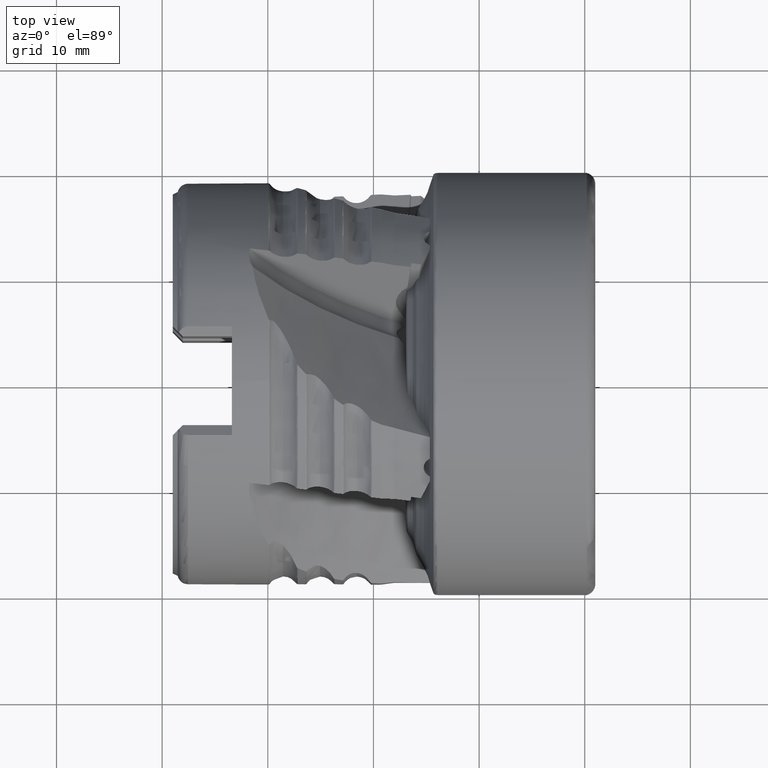
[diagram: clean part render]
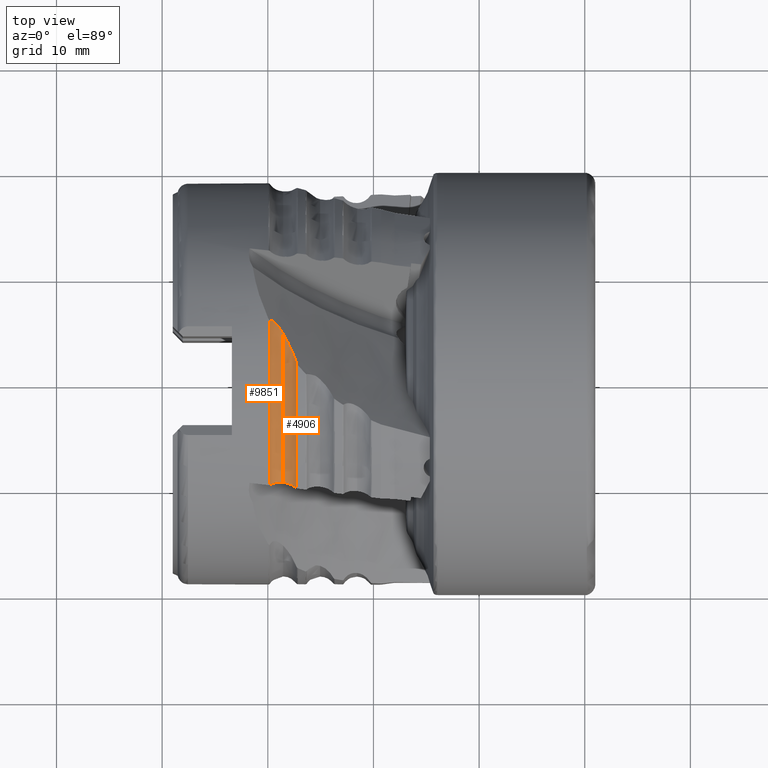
[diagram: same view with one multi-face feature highlighted, each face labeled with its STEP entity id]
A machine part, top view. The highlighted faces form ONE feature: a constant-radius fillet chain: 2 tangent blend faces with common blend radius 1.5 mm. The faces share edges in the B-rep.
Their STEP definitions:
[1] entity #9851 (Torus):
#206 = AXIS2_PLACEMENT_3D ( 'NONE', #777, #6692, #15238 ) ;
#270 = EDGE_CURVE ( 'NONE', #10685, #5851, #6295, .T. ) ;
#388 = CARTESIAN_POINT ( 'NONE',  ( -28.72145279051330391, 4.726668704741195270, 17.63498071032535464 ) ) ;
#650 = ORIENTED_EDGE ( 'NONE', *, *, #13122, .F. ) ;
#777 = CARTESIAN_POINT ( 'NONE',  ( -29.79392989822396487, 0.0000000000000000000, 0.0000000000000000000 ) ) ;
#964 = TOROIDAL_SURFACE ( 'NONE', #1786, 19.75000000000000000, 1.500000000000002220 ) ;
#1338 = FACE_OUTER_BOUND ( 'NONE', #5513, .T. ) ;
#1597 = CARTESIAN_POINT ( 'NONE',  ( -28.90605975742011680, 5.008974433241498048, 17.59116912188862614 ) ) ;
#1697 = CARTESIAN_POINT ( 'NONE',  ( -29.21699488190107274, 5.413079981942582997, 17.59086704328792194 ) ) ;
#1786 = AXIS2_PLACEMENT_3D ( 'NONE', #13657, #14916, #10044 ) ;
#1795 = B_SPLINE_CURVE_WITH_KNOTS ( 'NONE', 3,
 ( #9629, #13192, #4972, #9575, #7160, #10782, #12013, #6071 ),
 .UNSPECIFIED., .F., .F.,
 ( 4, 2, 2, 4 ),
 ( 0.001476875426904100718, 0.001842837215292535266, 0.002208799003680970031, 0.002940722580457849102 ),
 .UNSPECIFIED. ) ;
#2109 = EDGE_CURVE ( 'NONE', #15001, #5851, #1795, .T. ) ;
#2201 = CARTESIAN_POINT ( 'NONE',  ( -29.79392989822396487, 5.710060270369656799, 18.02914462750252511 ) ) ;
#3784 = CARTESIAN_POINT ( 'NONE',  ( -28.54999999999999005, 4.439997756904186410, 17.70166432623457453 ) ) ;
#4214 = VERTEX_POINT ( 'NONE', #8082 ) ;
#4538 = ORIENTED_EDGE ( 'NONE', *, *, #2109, .F. ) ;
#4947 = B_SPLINE_CURVE_WITH_KNOTS ( 'NONE', 3,
 ( #3784, #7542, #388, #1597, #10111, #7690, #1697, #11371, #12447, #13620, #11412, #14981, #10061, #6456 ),
 .UNSPECIFIED., .F., .F.,
 ( 4, 2, 2, 2, 2, 2, 4 ),
 ( 0.003171169772182523810, 0.003675496995640124484, 0.004179824219097724725, 0.004431987830826522243, 0.004684151442555320628, 0.004936315054284119014, 0.005188478666012916532 ),
 .UNSPECIFIED. ) ;
#4972 = CARTESIAN_POINT ( 'NONE',  ( -28.79364048011194299, -9.569151484905557226, 15.55765446600306845 ) ) ;
#5513 = EDGE_LOOP ( 'NONE', ( #650, #6274, #7227, #4538 ) ) ;
#5650 = DIRECTION ( 'NONE',  ( 0.0000000000000000000, 0.0000000000000000000, -1.000000000000000000 ) ) ;
#5851 = VERTEX_POINT ( 'NONE', #6083 ) ;
#6071 = CARTESIAN_POINT ( 'NONE',  ( -29.79392989822396842, -9.830223778698798043, 16.15616120095866037 ) ) ;
#6083 = CARTESIAN_POINT ( 'NONE',  ( -29.79392989822396842, -9.830223778698798043, 16.15616120095866037 ) ) ;
#6274 = ORIENTED_EDGE ( 'NONE', *, *, #13969, .T. ) ;
#6295 = CIRCLE ( 'NONE', #206, 18.91176470588235148 ) ;
#6456 = CARTESIAN_POINT ( 'NONE',  ( -29.79392989822396487, 5.710060270369656799, 18.02914462750252511 ) ) ;
#6692 = DIRECTION ( 'NONE',  ( 1.000000000000000000, -0.0000000000000000000, -0.0000000000000000000 ) ) ;
#7160 = CARTESIAN_POINT ( 'NONE',  ( -29.14491572720928758, -9.587475059294408908, 15.66686543933943909 ) ) ;
#7227 = ORIENTED_EDGE ( 'NONE', *, *, #270, .T. ) ;
#7536 = CIRCLE ( 'NONE', #13128, 18.25000000000000000 ) ;
#7542 = CARTESIAN_POINT ( 'NONE',  ( -28.63400816086703671, 4.583514677829058748, 17.66566687451242501 ) ) ;
#7690 = CARTESIAN_POINT ( 'NONE',  ( -29.16182876642536215, 5.348229960753075218, 17.58401265682263670 ) ) ;
#8082 = CARTESIAN_POINT ( 'NONE',  ( -28.54999999999999005, 4.439997756904186410, 17.70166432623457453 ) ) ;
#9461 = CARTESIAN_POINT ( 'NONE',  ( -28.54999999999999361, 0.0000000000000000000, 0.0000000000000000000 ) ) ;
#9575 = CARTESIAN_POINT ( 'NONE',  ( -29.02882884201347125, -9.575303218903581381, 15.62235569131432023 ) ) ;
#9629 = CARTESIAN_POINT ( 'NONE',  ( -28.54999999999999361, -9.589558594929952662, 15.52748743211228266 ) ) ;
#9851 = ADVANCED_FACE ( 'NONE', ( #1338 ), #964, .F. ) ;
#10044 = DIRECTION ( 'NONE',  ( 0.0000000000000000000, 0.0000000000000000000, -1.000000000000000000 ) ) ;
#10061 = CARTESIAN_POINT ( 'NONE',  ( -29.75196920375208620, 5.731264558055857883, 17.95711145735987202 ) ) ;
#10111 = CARTESIAN_POINT ( 'NONE',  ( -29.00254078698124260, 5.147870505912443662, 17.57744300212497279 ) ) ;
#10174 = CARTESIAN_POINT ( 'NONE',  ( -28.54999999999999361, -9.589558594929952662, 15.52748743211228266 ) ) ;
#10685 = VERTEX_POINT ( 'NONE', #2201 ) ;
#10782 = CARTESIAN_POINT ( 'NONE',  ( -29.46782133979106888, -9.649563896562272092, 15.82953088298592448 ) ) ;
#11371 = CARTESIAN_POINT ( 'NONE',  ( -29.33323688149432584, 5.534424879717814605, 17.62036196497975027 ) ) ;
#11412 = CARTESIAN_POINT ( 'NONE',  ( -29.58484527366480421, 5.714391229230227687, 17.76435701903144704 ) ) ;
#12013 = CARTESIAN_POINT ( 'NONE',  ( -29.65559126738538964, -9.725816774851040236, 15.97938019686068145 ) ) ;
#12447 = CARTESIAN_POINT ( 'NONE',  ( -29.39402258221613806, 5.590641122574437460, 17.64291623089366112 ) ) ;
#12806 = DIRECTION ( 'NONE',  ( 1.000000000000000000, -0.0000000000000000000, -0.0000000000000000000 ) ) ;
#13122 = EDGE_CURVE ( 'NONE', #4214, #15001, #7536, .T. ) ;
#13128 = AXIS2_PLACEMENT_3D ( 'NONE', #9461, #12806, #5650 ) ;
#13192 = CARTESIAN_POINT ( 'NONE',  ( -28.67171416517704685, -9.574963504016002602, 15.53650115568665591 ) ) ;
#13620 = CARTESIAN_POINT ( 'NONE',  ( -29.51983162637578673, 5.681348409906190611, 17.71423303499476276 ) ) ;
#13657 = CARTESIAN_POINT ( 'NONE',  ( -28.54999999999999361, 0.0000000000000000000, 0.0000000000000000000 ) ) ;
#13969 = EDGE_CURVE ( 'NONE', #4214, #10685, #4947, .T. ) ;
#14916 = DIRECTION ( 'NONE',  ( 1.000000000000000000, -0.0000000000000000000, -0.0000000000000000000 ) ) ;
#14981 = CARTESIAN_POINT ( 'NONE',  ( -29.70103547500336916, 5.739024415631083009, 17.88627177724093897 ) ) ;
#15001 = VERTEX_POINT ( 'NONE', #10174 ) ;
#15238 = DIRECTION ( 'NONE',  ( 0.0000000000000000000, 0.0000000000000000000, -1.000000000000000000 ) ) ;
[2] entity #4906 (Torus):
#167 = FACE_OUTER_BOUND ( 'NONE', #721, .T. ) ;
#291 = ORIENTED_EDGE ( 'NONE', *, *, #13122, .T. ) ;
#472 = EDGE_CURVE ( 'NONE', #7560, #4214, #4082, .T. ) ;
#680 = CARTESIAN_POINT ( 'NONE',  ( -27.73868911363389955, -9.823618825003091359, 15.65565736214987602 ) ) ;
#721 = EDGE_LOOP ( 'NONE', ( #4026, #291, #2289, #11533 ) ) ;
#886 = CARTESIAN_POINT ( 'NONE',  ( -28.42723216541254772, -9.604280034332708382, 15.51839567748218585 ) ) ;
#966 = CIRCLE ( 'NONE', #4106, 18.91176470588235503 ) ;
#1887 = CARTESIAN_POINT ( 'NONE',  ( -27.30607010177601524, 0.0000000000000000000, 0.0000000000000000000 ) ) ;
#2289 = ORIENTED_EDGE ( 'NONE', *, *, #13030, .F. ) ;
#2769 = AXIS2_PLACEMENT_3D ( 'NONE', #13143, #8548, #8487 ) ;
#2796 = TOROIDAL_SURFACE ( 'NONE', #2769, 19.75000000000000000, 1.500000000000002220 ) ;
#3292 = DIRECTION ( 'NONE',  ( 1.000000000000000000, -0.0000000000000000000, -0.0000000000000000000 ) ) ;
#4026 = ORIENTED_EDGE ( 'NONE', *, *, #472, .T. ) ;
#4082 = B_SPLINE_CURVE_WITH_KNOTS ( 'NONE', 3,
 ( #14218, #9501, #5006, #13366, #6201, #8763, #13576, #12457 ),
 .UNSPECIFIED., .F., .F.,
 ( 4, 2, 2, 4 ),
 ( 7.207263653116295276E-07, 0.001585945249273917109, 0.002378557510728219592, 0.003171169772182523810 ),
 .UNSPECIFIED. ) ;
#4106 = AXIS2_PLACEMENT_3D ( 'NONE', #1887, #3292, #10482 ) ;
#4214 = VERTEX_POINT ( 'NONE', #8082 ) ;
#4906 = ADVANCED_FACE ( 'NONE', ( #167 ), #2796, .F. ) ;
#5006 = CARTESIAN_POINT ( 'NONE',  ( -27.63801852661946867, 2.641972562791444101, 18.35279168156895935 ) ) ;
#5650 = DIRECTION ( 'NONE',  ( 0.0000000000000000000, 0.0000000000000000000, -1.000000000000000000 ) ) ;
#6201 = CARTESIAN_POINT ( 'NONE',  ( -28.06076386043158166, 3.537754352346358822, 17.98376254561111409 ) ) ;
#6538 = B_SPLINE_CURVE_WITH_KNOTS ( 'NONE', 3,
 ( #11401, #12592, #13764, #7833, #680, #10348, #6896, #10555, #886, #14071 ),
 .UNSPECIFIED., .F., .F.,
 ( 4, 2, 2, 2, 4 ),
 ( 3.558702252406054181E-07, 0.0003694857593949572535, 0.0007386156485646738377, 0.001107745537734387440, 0.001476875426904100718 ),
 .UNSPECIFIED. ) ;
#6896 = CARTESIAN_POINT ( 'NONE',  ( -28.06881613418840615, -9.690801294310167791, 15.55178386036189409 ) ) ;
#7536 = CIRCLE ( 'NONE', #13128, 18.25000000000000000 ) ;
#7560 = VERTEX_POINT ( 'NONE', #8158 ) ;
#7833 = CARTESIAN_POINT ( 'NONE',  ( -27.63671060735999419, -9.877812468496522058, 15.70586521283129677 ) ) ;
#8082 = CARTESIAN_POINT ( 'NONE',  ( -28.54999999999999005, 4.439997756904186410, 17.70166432623457453 ) ) ;
#8158 = CARTESIAN_POINT ( 'NONE',  ( -27.30607010177628524, 1.751493425054557740, 18.83048366539301810 ) ) ;
#8487 = DIRECTION ( 'NONE',  ( 0.0000000000000000000, 0.0000000000000000000, -1.000000000000000000 ) ) ;
#8548 = DIRECTION ( 'NONE',  ( 1.000000000000000000, -0.0000000000000000000, -0.0000000000000000000 ) ) ;
#8763 = CARTESIAN_POINT ( 'NONE',  ( -28.29437033476194685, 3.987860469339596037, 17.82799096587501353 ) ) ;
#9461 = CARTESIAN_POINT ( 'NONE',  ( -28.54999999999999361, 0.0000000000000000000, 0.0000000000000000000 ) ) ;
#9501 = CARTESIAN_POINT ( 'NONE',  ( -27.45272098605359190, 2.196470113140660096, 18.57052740465840657 ) ) ;
#10174 = CARTESIAN_POINT ( 'NONE',  ( -28.54999999999999361, -9.589558594929952662, 15.52748743211228266 ) ) ;
#10348 = CARTESIAN_POINT ( 'NONE',  ( -27.95344739433885195, -9.730730522922440784, 15.57915679198929659 ) ) ;
#10384 = VERTEX_POINT ( 'NONE', #11027 ) ;
#10482 = DIRECTION ( 'NONE',  ( 0.0000000000000000000, 0.0000000000000000000, -1.000000000000000000 ) ) ;
#10555 = CARTESIAN_POINT ( 'NONE',  ( -28.30644849292181320, -9.627501425372798849, 15.52147752042929696 ) ) ;
#11027 = CARTESIAN_POINT ( 'NONE',  ( -27.30607010177601524, -10.12800698049564829, 15.97117149409174530 ) ) ;
#11401 = CARTESIAN_POINT ( 'NONE',  ( -27.30607010177601524, -10.12800698049564829, 15.97117149409174530 ) ) ;
#11533 = ORIENTED_EDGE ( 'NONE', *, *, #13726, .F. ) ;
#12457 = CARTESIAN_POINT ( 'NONE',  ( -28.54999999999999005, 4.439997756904186410, 17.70166432623457453 ) ) ;
#12592 = CARTESIAN_POINT ( 'NONE',  ( -27.37523150777046865, -10.05933426322016722, 15.89318826225775538 ) ) ;
#12806 = DIRECTION ( 'NONE',  ( 1.000000000000000000, -0.0000000000000000000, -0.0000000000000000000 ) ) ;
#13030 = EDGE_CURVE ( 'NONE', #10384, #15001, #6538, .T. ) ;
#13122 = EDGE_CURVE ( 'NONE', #4214, #15001, #7536, .T. ) ;
#13128 = AXIS2_PLACEMENT_3D ( 'NONE', #9461, #12806, #5650 ) ;
#13143 = CARTESIAN_POINT ( 'NONE',  ( -28.54999999999999361, 0.0000000000000000000, 0.0000000000000000000 ) ) ;
#13366 = CARTESIAN_POINT ( 'NONE',  ( -27.95047030236189300, 3.313419819767696506, 18.07022663539719787 ) ) ;
#13576 = CARTESIAN_POINT ( 'NONE',  ( -28.41797084260294781, 4.214443263788923311, 17.75823874912689959 ) ) ;
#13726 = EDGE_CURVE ( 'NONE', #7560, #10384, #966, .T. ) ;
#13764 = CARTESIAN_POINT ( 'NONE',  ( -27.45537537680922924, -9.995644061483172749, 15.82468880744432305 ) ) ;
#14071 = CARTESIAN_POINT ( 'NONE',  ( -28.54999999999999361, -9.589558594929952662, 15.52748743211228266 ) ) ;
#14218 = CARTESIAN_POINT ( 'NONE',  ( -27.30607010177628524, 1.751493425054557740, 18.83048366539301810 ) ) ;
#15001 = VERTEX_POINT ( 'NONE', #10174 ) ;